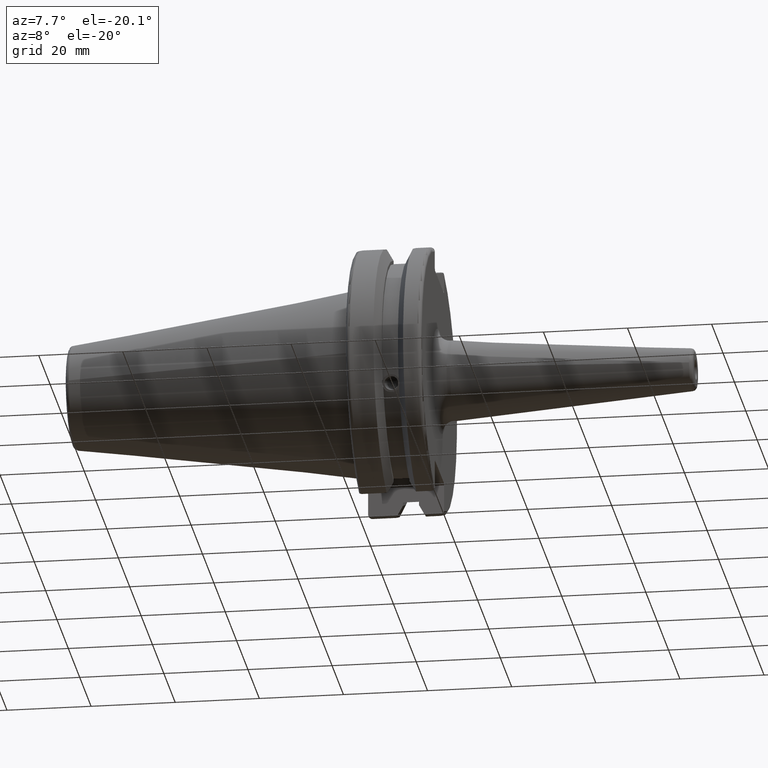
[diagram: clean part render]
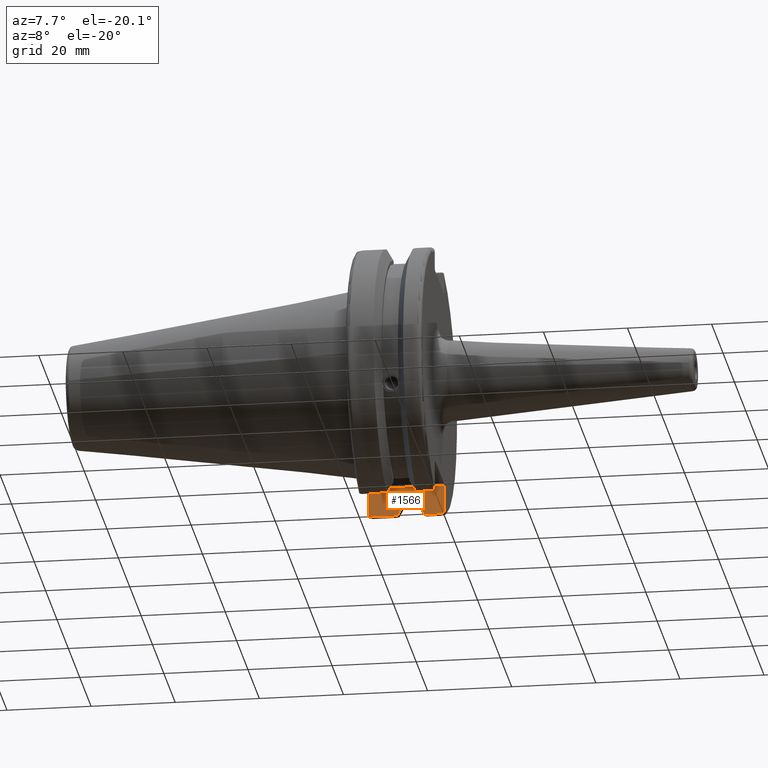
[diagram: same view with one face highlighted and labeled with its STEP entity id]
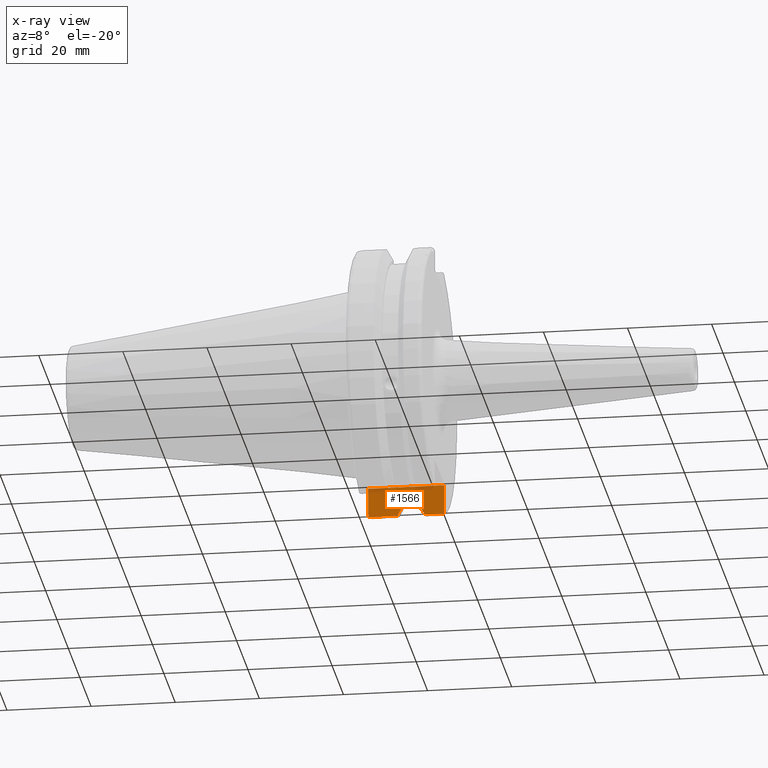
[diagram: x-ray of the same camera — body ghosted, the highlighted face saturated]
A machine part, auxiliary view. The second image highlights one B-rep face of the part: STEP entity #1566.
The next image is the same camera in x-ray: the body ghosted, the highlighted face saturated — about 7% of this face is hidden behind the body in this view.
In plain terms, the highlighted planar face has unit normal (-0, 1, 0).
Its self-contained STEP definition (entity closure, byte-faithful):
#22=(
BOUNDED_CURVE()
B_SPLINE_CURVE(2,(#2692,#2693,#2694),.UNSPECIFIED.,.F.,.F.)
B_SPLINE_CURVE_WITH_KNOTS((3,3),(0.,0.27654914279601),.UNSPECIFIED.)
CURVE()
GEOMETRIC_REPRESENTATION_ITEM()
RATIONAL_B_SPLINE_CURVE((1.,1.00095203903532,1.00031614444885))
REPRESENTATION_ITEM('')
);
#27=(
BOUNDED_CURVE()
B_SPLINE_CURVE(2,(#2799,#2800,#2801),.UNSPECIFIED.,.F.,.F.)
B_SPLINE_CURVE_WITH_KNOTS((3,3),(0.0550586467390279,0.331607789535849),
 .UNSPECIFIED.)
CURVE()
GEOMETRIC_REPRESENTATION_ITEM()
RATIONAL_B_SPLINE_CURVE((1.00031614445116,1.00095203904229,1.))
REPRESENTATION_ITEM('')
);
#69=B_SPLINE_CURVE_WITH_KNOTS('',3,(#2753,#2754,#2755,#2756,#2757,#2758),
 .UNSPECIFIED.,.F.,.F.,(4,2,4),(0.452741154494498,0.491581665024871,0.505824174364157),
 .UNSPECIFIED.);
#72=B_SPLINE_CURVE_WITH_KNOTS('',3,(#2792,#2793,#2794,#2795,#2796,#2797),
 .UNSPECIFIED.,.F.,.F.,(4,2,4),(0.0977210450333167,0.111963554372601,0.150804064902975),
 .UNSPECIFIED.);
#138=PLANE('',#1741);
#174=LINE('',#2331,#272);
#204=LINE('',#2713,#302);
#205=LINE('',#2717,#303);
#206=LINE('',#2721,#304);
#212=LINE('',#2780,#310);
#214=LINE('',#2788,#312);
#215=LINE('',#2790,#313);
#216=LINE('',#2798,#314);
#272=VECTOR('',#1866,10.);
#302=VECTOR('',#2036,10.);
#303=VECTOR('',#2041,10.);
#304=VECTOR('',#2046,10.);
#310=VECTOR('',#2080,10.);
#312=VECTOR('',#2084,10.);
#313=VECTOR('',#2085,10.);
#314=VECTOR('',#2086,10.);
#418=FACE_OUTER_BOUND('',#515,.T.);
#515=EDGE_LOOP('',(#1269,#1270,#1271,#1272,#1273,#1274,#1275,#1276,#1277,
#1278,#1279,#1280));
#651=VERTEX_POINT('',#2309);
#661=VERTEX_POINT('',#2329);
#723=VERTEX_POINT('',#2689);
#724=VERTEX_POINT('',#2691);
#729=VERTEX_POINT('',#2711);
#730=VERTEX_POINT('',#2715);
#731=VERTEX_POINT('',#2719);
#739=VERTEX_POINT('',#2752);
#742=VERTEX_POINT('',#2779);
#744=VERTEX_POINT('',#2787);
#745=VERTEX_POINT('',#2789);
#746=VERTEX_POINT('',#2791);
#821=EDGE_CURVE('',#661,#651,#174,.T.);
#909=EDGE_CURVE('',#723,#724,#22,.T.);
#916=EDGE_CURVE('',#729,#723,#204,.T.);
#918=EDGE_CURVE('',#730,#729,#205,.T.);
#920=EDGE_CURVE('',#731,#730,#206,.T.);
#932=EDGE_CURVE('',#651,#739,#69,.T.);
#936=EDGE_CURVE('',#739,#742,#212,.T.);
#939=EDGE_CURVE('',#744,#661,#214,.T.);
#940=EDGE_CURVE('',#745,#744,#215,.T.);
#941=EDGE_CURVE('',#746,#745,#72,.T.);
#942=EDGE_CURVE('',#724,#746,#216,.T.);
#943=EDGE_CURVE('',#742,#731,#27,.T.);
#1269=ORIENTED_EDGE('',*,*,#932,.F.);
#1270=ORIENTED_EDGE('',*,*,#821,.F.);
#1271=ORIENTED_EDGE('',*,*,#939,.F.);
#1272=ORIENTED_EDGE('',*,*,#940,.F.);
#1273=ORIENTED_EDGE('',*,*,#941,.F.);
#1274=ORIENTED_EDGE('',*,*,#942,.F.);
#1275=ORIENTED_EDGE('',*,*,#909,.F.);
#1276=ORIENTED_EDGE('',*,*,#916,.F.);
#1277=ORIENTED_EDGE('',*,*,#918,.F.);
#1278=ORIENTED_EDGE('',*,*,#920,.F.);
#1279=ORIENTED_EDGE('',*,*,#943,.F.);
#1280=ORIENTED_EDGE('',*,*,#936,.F.);
#1566=ADVANCED_FACE('',(#418),#138,.F.);
#1741=AXIS2_PLACEMENT_3D('',#2786,#2082,#2083);
#1866=DIRECTION('',(0.,0.,-1.));
#2036=DIRECTION('',(0.,0.,-1.));
#2041=DIRECTION('',(-1.,0.,0.));
#2046=DIRECTION('',(0.,0.,1.));
#2080=DIRECTION('',(-1.,-1.16558847729675E-16,0.));
#2082=DIRECTION('center_axis',(-1.16558847729675E-16,1.,0.));
#2083=DIRECTION('ref_axis',(1.,1.16558847729675E-16,0.));
#2084=DIRECTION('',(1.,1.16558847729675E-16,0.));
#2085=DIRECTION('',(0.,0.,1.));
#2086=DIRECTION('',(-1.,-1.16558847729675E-16,0.));
#2309=CARTESIAN_POINT('',(19.05,8.19,-29.6392712461019));
#2329=CARTESIAN_POINT('',(19.05,8.19,-23.1));
#2331=CARTESIAN_POINT('',(19.05,8.19,-11.3));
#2689=CARTESIAN_POINT('',(9.261,8.19,-27.7771386827498));
#2691=CARTESIAN_POINT('',(7.92858530351256,8.19,-30.1755016258903));
#2692=CARTESIAN_POINT('Ctrl Pts',(9.261,8.19,-27.7771386827498));
#2693=CARTESIAN_POINT('Ctrl Pts',(8.62236356152083,8.19,-28.930368953976));
#2694=CARTESIAN_POINT('Ctrl Pts',(7.92858530351256,8.19,-30.1755016258903));
#2711=CARTESIAN_POINT('',(9.261,8.19,-26.932255754021));
#2713=CARTESIAN_POINT('',(9.261,8.18999999999999,-11.3));
#2715=CARTESIAN_POINT('',(13.091,8.19,-26.932255754021));
#2717=CARTESIAN_POINT('',(11.176,8.19,-26.932255754021));
#2719=CARTESIAN_POINT('',(13.091,8.19,-27.7771386827498));
#2721=CARTESIAN_POINT('',(13.091,8.19,-11.3));
#2752=CARTESIAN_POINT('',(18.9058722749097,8.19,-30.1755016258903));
#2753=CARTESIAN_POINT('Ctrl Pts',(19.05,8.19,-29.6392712461019));
#2754=CARTESIAN_POINT('Ctrl Pts',(19.05,8.19,-29.7687396145364));
#2755=CARTESIAN_POINT('Ctrl Pts',(19.020485567083,8.19,-29.9212724384851));
#2756=CARTESIAN_POINT('Ctrl Pts',(18.9539643471756,8.19,-30.0852355256475));
#2757=CARTESIAN_POINT('Ctrl Pts',(18.9318163728133,8.19,-30.131014531546));
#2758=CARTESIAN_POINT('Ctrl Pts',(18.9058722749097,8.19,-30.1755016258903));
#2779=CARTESIAN_POINT('',(14.4234146964874,8.19,-30.1755016258903));
#2780=CARTESIAN_POINT('',(16.8760833845378,8.19,-30.1755016258903));
#2786=CARTESIAN_POINT('Origin',(0.999999999999999,8.19,-22.6));
#2787=CARTESIAN_POINT('',(1.,8.18999999999999,-23.1));
#2788=CARTESIAN_POINT('',(7.81,8.19,-23.1));
#2789=CARTESIAN_POINT('',(1.,8.18999999999999,-29.6392712461019));
#2790=CARTESIAN_POINT('',(1.,8.18999999999999,-11.3));
#2791=CARTESIAN_POINT('',(1.14412772509028,8.19,-30.1755016258903));
#2792=CARTESIAN_POINT('Ctrl Pts',(1.14412772509028,8.19,-30.1755016258903));
#2793=CARTESIAN_POINT('Ctrl Pts',(1.11818362718666,8.19,-30.131014531546));
#2794=CARTESIAN_POINT('Ctrl Pts',(1.09603565282437,8.19,-30.0852355256475));
#2795=CARTESIAN_POINT('Ctrl Pts',(1.02951443291695,8.19,-29.9212724384851));
#2796=CARTESIAN_POINT('Ctrl Pts',(1.,8.19,-29.7687396145364));
#2797=CARTESIAN_POINT('Ctrl Pts',(1.,8.19,-29.6392712461019));
#2798=CARTESIAN_POINT('',(4.32491661546218,8.19,-30.1755016258903));
#2799=CARTESIAN_POINT('Ctrl Pts',(14.4234146964874,8.19,-30.1755016258903));
#2800=CARTESIAN_POINT('Ctrl Pts',(13.7296364384736,8.19,-28.9303689539661));
#2801=CARTESIAN_POINT('Ctrl Pts',(13.091,8.19,-27.7771386827498));